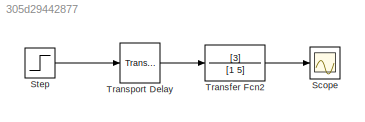
MODEL slx_305d29442877
KIND model
CONFIG AbsTol = auto
CONFIG EnableMultiTasking = off
CONFIG FixedStep = auto
CONFIG MaxStep = 0.003
CONFIG MinStep = 0.001
CONFIG RelTol = 1e-3
CONFIG SampleTimeConstraint = Unconstrained
CONFIG Solver = VariableStepAuto
CONFIG SolverName = VariableStepAuto
CONFIG StartTime = 0.0
CONFIG StopTime = 10.0
BLOCK [Scope] Scope
  Floating = off
  NumInputPorts = 1
  Ports = [1]
  ScopeSpecificationString = Simulink.scopes.TimeScopeBlockCfg('CurrentConfiguration', extmgr.ConfigurationSet(extmgr.Configuration('Core','General UI',true),extmgr.Configuration('Core','Source UI',true),extmgr.Configuration('Sources','WiredSimulink',true),extmgr.Configuration('Visuals','Time Domain',true,'SerializedDisplays',{struct('MinYLimReal','-0.075','MaxYLimReal','0.675','YLabelReal','','MinYLimMag','0.00000','MaxYLimM...<+1375ch>
BLOCK [Step] Step
  SampleTime = 0
BLOCK [TransferFcn] Transfer Fcn2
  Denominator = [1 5]
  Numerator = [3]
BLOCK [TransportDelay] Transport Delay
  DelayTime = 0.5
  Ports = [1, 1]
LINE Step:1 -> Transport Delay:1
LINE Transfer Fcn2:1 -> Scope:1
LINE Transport Delay:1 -> Transfer Fcn2:1
